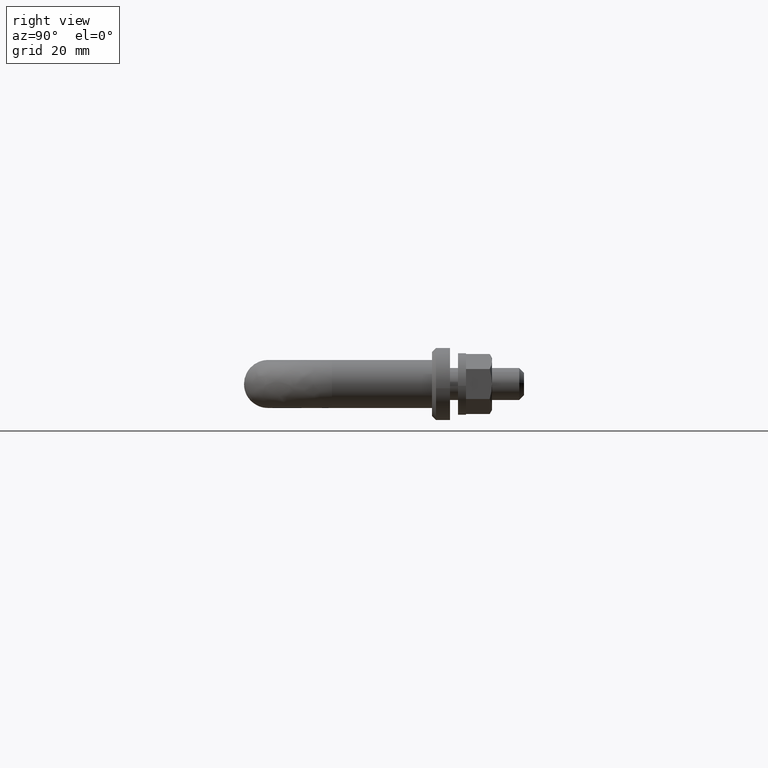
[diagram: clean part render]
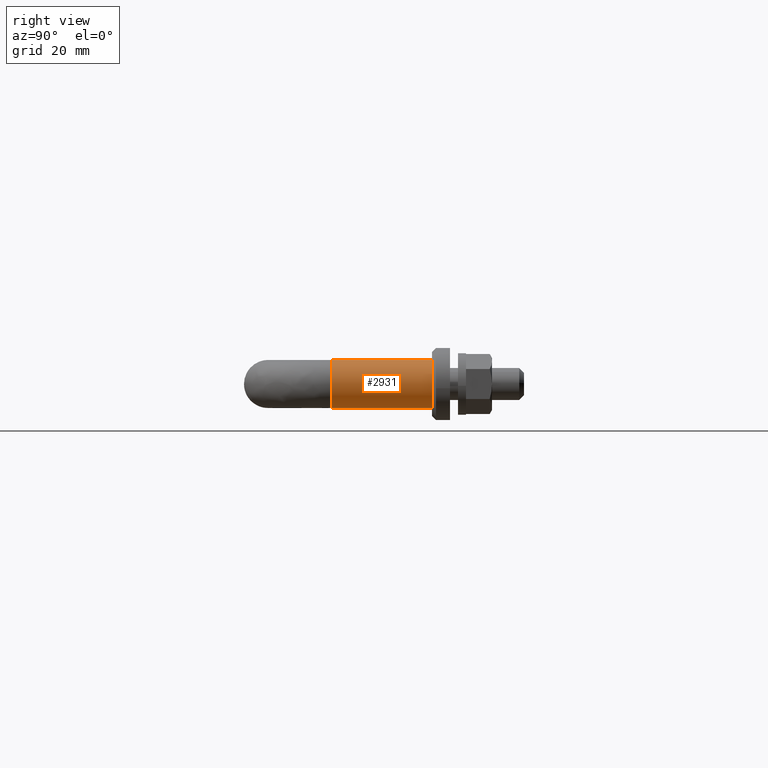
[diagram: same view with one face highlighted and labeled with its STEP entity id]
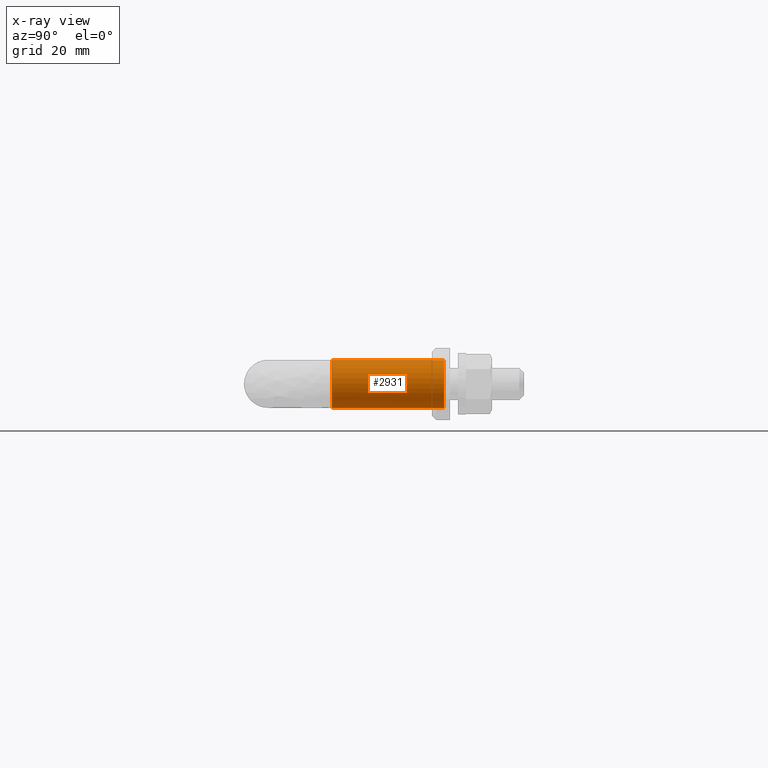
[diagram: x-ray of the same camera — body ghosted, the highlighted face saturated]
A machine part, right view. The second image highlights one B-rep face of the part: STEP entity #2931.
The next image is the same camera in x-ray: the body ghosted, the highlighted face saturated — about 0% of this face is hidden behind the body in this view.
In plain terms, the highlighted face is a freeform B-spline surface patch.
Its self-contained STEP definition (entity closure, byte-faithful):
#2730=CARTESIAN_POINT('',(150.470754574535900,-28.0,5.981504002385480));
#2731=VERTEX_POINT('',#2730);
#2732=CARTESIAN_POINT('',(144.420813481355000,-28.0,2.207414276969677));
#2733=VERTEX_POINT('',#2732);
#2749=CARTESIAN_POINT('',(150.470754574535900,1.705580E-014,5.981504002385480));
#2750=VERTEX_POINT('',#2749);
#2751=CARTESIAN_POINT('',(150.470754574535900,-28.0,5.981504002385480));
#2752=CARTESIAN_POINT('',(150.470754574535900,1.705580E-014,5.981504002385480));
#2753=QUASI_UNIFORM_CURVE('',1,(#2751,#2752),.UNSPECIFIED.,.F.,.U.);
#2754=EDGE_CURVE('',#2731,#2750,#2753,.T.);
#2756=CARTESIAN_POINT('',(144.420813481355000,1.706515E-014,2.207414276969677));
#2757=VERTEX_POINT('',#2756);
#2773=CARTESIAN_POINT('',(144.420813481355000,-28.0,2.207414276969677));
#2774=CARTESIAN_POINT('',(144.420813481355000,1.706515E-014,2.207414276969677));
#2775=QUASI_UNIFORM_CURVE('',1,(#2773,#2774),.UNSPECIFIED.,.F.,.U.);
#2776=EDGE_CURVE('',#2733,#2757,#2775,.T.);
#2781=CARTESIAN_POINT('',(150.470754574367110,-28.700000000797559,5.981504002398766));
#2782=CARTESIAN_POINT('',(156.452258576765810,-28.700000000797555,5.510749428031692));
#2783=CARTESIAN_POINT('',(155.981504002398790,-28.700000000797559,-0.470754574367073));
#2784=CARTESIAN_POINT('',(155.510749428031660,-28.700000000797555,-6.452258576765839));
#2785=CARTESIAN_POINT('',(149.529245425632890,-28.700000000797559,-5.981504002398766));
#2786=CARTESIAN_POINT('',(143.547741423234240,-28.700000000797555,-5.510749428031692));
#2787=CARTESIAN_POINT('',(144.018495997601210,-28.700000000797559,0.470754574367073));
#2788=CARTESIAN_POINT('',(144.089213269862800,-28.700000000797555,1.369302714106634));
#2789=CARTESIAN_POINT('',(144.420813481346610,-28.700000000797552,2.207414276948618));
#2790=CARTESIAN_POINT('',(150.470754574367110,0.717500000019957,5.981504002398766));
#2791=CARTESIAN_POINT('',(156.452258576765810,0.717500000019957,5.510749428031692));
#2792=CARTESIAN_POINT('',(155.981504002398790,0.717500000019957,-0.470754574367073));
#2793=CARTESIAN_POINT('',(155.510749428031660,0.717500000019957,-6.452258576765839));
#2794=CARTESIAN_POINT('',(149.529245425632890,0.717500000019957,-5.981504002398766));
#2795=CARTESIAN_POINT('',(143.547741423234240,0.717500000019957,-5.510749428031692));
#2796=CARTESIAN_POINT('',(144.018495997601210,0.717500000019957,0.470754574367073));
#2797=CARTESIAN_POINT('',(144.089213269862800,0.717500000019957,1.369302714106634));
#2798=CARTESIAN_POINT('',(144.420813481346610,0.717500000019957,2.207414276948618));
#2806=(BOUNDED_SURFACE()B_SPLINE_SURFACE(2,1,((#2781,#2790),(#2782,#2791),(#2783,#2792),(#2784,#2793),(#2785,#2794),(#2786,#2795),(#2787,#2796),(#2788,#2797),(#2789,#2798)),.UNSPECIFIED.,.F.,.F.,.U.)B_SPLINE_SURFACE_WITH_KNOTS((3,2,2,2,3),(2,2),(0.0,9.941125496954307,19.882250993908610,29.823376490862920,31.811601590253780),(0.0,29.417500000817508),.UNSPECIFIED.)GEOMETRIC_REPRESENTATION_ITEM()RATIONAL_B_SPLINE_SURFACE(((1.0,1.0),(0.707106781186548,0.707106781186548),(1.0,1.0),(0.707106781186548,0.707106781186548),(1.0,1.0),(0.707106781186548,0.707106781186548),(1.0,1.0),(0.941421356237310,0.941421356237310),(0.906274169979695,0.906274169979695)))REPRESENTATION_ITEM('')SURFACE());
#2807=CARTESIAN_POINT('',(144.0,-28.0,0.0));
#2808=VERTEX_POINT('',#2807);
#2809=CARTESIAN_POINT('',(144.420813481354970,-28.000000000000004,2.207414276969677));
#2810=CARTESIAN_POINT('',(144.0,-28.000000000000004,1.143818319242670));
#2811=CARTESIAN_POINT('',(144.0,-28.0,0.0));
#2819=(BOUNDED_CURVE()B_SPLINE_CURVE(2,(#2809,#2810,#2811),.UNSPECIFIED.,.F.,.U.)B_SPLINE_CURVE_WITH_KNOTS((3,3),(0.937532549938274,1.0),.UNSPECIFIED.)CURVE()GEOMETRIC_REPRESENTATION_ITEM()RATIONAL_B_SPLINE_CURVE((0.890203187499966,0.926814829921410,1.0))REPRESENTATION_ITEM(''));
#2820=EDGE_CURVE('',#2733,#2808,#2819,.T.);
#2821=ORIENTED_EDGE('',*,*,#2820,.F.);
#2822=ORIENTED_EDGE('',*,*,#2776,.T.);
#2823=CARTESIAN_POINT('',(144.0,1.734723E-014,0.0));
#2824=VERTEX_POINT('',#2823);
#2825=CARTESIAN_POINT('',(144.420813481354970,1.706515E-014,2.207414276969677));
#2826=CARTESIAN_POINT('',(144.0,1.734723E-014,1.143818319242670));
#2827=CARTESIAN_POINT('',(144.0,1.734723E-014,0.0));
#2835=(BOUNDED_CURVE()B_SPLINE_CURVE(2,(#2825,#2826,#2827),.UNSPECIFIED.,.F.,.U.)B_SPLINE_CURVE_WITH_KNOTS((3,3),(0.937532549938274,1.0),.UNSPECIFIED.)CURVE()GEOMETRIC_REPRESENTATION_ITEM()RATIONAL_B_SPLINE_CURVE((0.890203187499966,0.926814829921410,1.0))REPRESENTATION_ITEM(''));
#2836=EDGE_CURVE('',#2757,#2824,#2835,.T.);
#2837=ORIENTED_EDGE('',*,*,#2836,.T.);
#2838=CARTESIAN_POINT('',(156.0,1.734723E-014,0.0));
#2839=VERTEX_POINT('',#2838);
#2840=CARTESIAN_POINT('',(144.0,1.734723E-014,0.0));
#2841=CARTESIAN_POINT('',(144.000000000000060,1.734723E-014,-6.0));
#2842=CARTESIAN_POINT('',(150.0,1.734723E-014,-6.0));
#2843=CARTESIAN_POINT('',(155.999999999999970,1.734723E-014,-6.0));
#2844=CARTESIAN_POINT('',(156.0,1.734723E-014,0.0));
#2852=(BOUNDED_CURVE()B_SPLINE_CURVE(2,(#2840,#2841,#2842,#2843,#2844),.UNSPECIFIED.,.F.,.U.)B_SPLINE_CURVE_WITH_KNOTS((3,2,3),(0.0,0.250000000000000,0.500000000000000),.UNSPECIFIED.)CURVE()GEOMETRIC_REPRESENTATION_ITEM()RATIONAL_B_SPLINE_CURVE((1.0,0.707106781186548,1.0,0.707106781186548,1.0))REPRESENTATION_ITEM(''));
#2853=EDGE_CURVE('',#2824,#2839,#2852,.T.);
#2854=ORIENTED_EDGE('',*,*,#2853,.T.);
#2855=CARTESIAN_POINT('',(156.0,1.734723E-014,0.0));
#2856=CARTESIAN_POINT('',(155.999999999999970,1.734723E-014,5.546342949635164));
#2857=CARTESIAN_POINT('',(150.470754574535960,1.705580E-014,5.981504002385480));
#2865=(BOUNDED_CURVE()B_SPLINE_CURVE(2,(#2855,#2856,#2857),.UNSPECIFIED.,.F.,.U.)B_SPLINE_CURVE_WITH_KNOTS((3,3),(0.500000000000000,0.736331300623089),.UNSPECIFIED.)CURVE()GEOMETRIC_REPRESENTATION_ITEM()RATIONAL_B_SPLINE_CURVE((1.0,0.723120658616535,0.969723356151619))REPRESENTATION_ITEM(''));
#2866=EDGE_CURVE('',#2839,#2750,#2865,.T.);
#2867=ORIENTED_EDGE('',*,*,#2866,.T.);
#2868=ORIENTED_EDGE('',*,*,#2754,.F.);
#2869=CARTESIAN_POINT('',(156.0,-28.0,0.0));
#2870=VERTEX_POINT('',#2869);
#2871=CARTESIAN_POINT('',(156.0,-28.0,0.0));
#2872=CARTESIAN_POINT('',(155.999999999999970,-27.999999999999996,5.546342949635164));
#2873=CARTESIAN_POINT('',(150.470754574535820,-28.000000000000004,5.981504002385480));
#2881=(BOUNDED_CURVE()B_SPLINE_CURVE(2,(#2871,#2872,#2873),.UNSPECIFIED.,.F.,.U.)B_SPLINE_CURVE_WITH_KNOTS((3,3),(0.500000000000000,0.736331300623089),.UNSPECIFIED.)CURVE()GEOMETRIC_REPRESENTATION_ITEM()RATIONAL_B_SPLINE_CURVE((1.0,0.723120658616535,0.969723356151619))REPRESENTATION_ITEM(''));
#2882=EDGE_CURVE('',#2870,#2731,#2881,.T.);
#2883=ORIENTED_EDGE('',*,*,#2882,.F.);
#2884=CARTESIAN_POINT('',(152.417438616497800,-28.000000000778101,-5.491447034750065));
#2885=VERTEX_POINT('',#2884);
#2886=CARTESIAN_POINT('',(152.417438616497690,-28.000000000778101,-5.491447034750065));
#2887=CARTESIAN_POINT('',(156.000000000000030,-28.0,-3.914335903726876));
#2888=CARTESIAN_POINT('',(156.0,-28.0,0.0));
#2896=(BOUNDED_CURVE()B_SPLINE_CURVE(2,(#2886,#2887,#2888),.UNSPECIFIED.,.F.,.U.)B_SPLINE_CURVE_WITH_KNOTS((3,3),(0.318414990264596,0.500000000000000),.UNSPECIFIED.)CURVE()GEOMETRIC_REPRESENTATION_ITEM()RATIONAL_B_SPLINE_CURVE((0.883563120384450,0.787259928041302,1.0))REPRESENTATION_ITEM(''));
#2897=EDGE_CURVE('',#2885,#2870,#2896,.T.);
#2898=ORIENTED_EDGE('',*,*,#2897,.F.);
#2899=CARTESIAN_POINT('',(144.508552964583200,-28.000000000472362,-2.417438614983335));
#2900=VERTEX_POINT('',#2899);
#2901=CARTESIAN_POINT('',(144.508552964583200,-28.000000000472358,-2.417438614983334));
#2902=CARTESIAN_POINT('',(146.085664093914150,-27.999999999999996,-6.0));
#2903=CARTESIAN_POINT('',(150.0,-28.0,-6.0));
#2904=CARTESIAN_POINT('',(151.262211074867390,-28.0,-6.0));
#2905=CARTESIAN_POINT('',(152.417438616497690,-28.000000000778101,-5.491447034750065));
#2913=(BOUNDED_CURVE()B_SPLINE_CURVE(2,(#2901,#2902,#2903,#2904,#2905),.UNSPECIFIED.,.F.,.U.)B_SPLINE_CURVE_WITH_KNOTS((3,2,3),(0.068414990178445,0.250000000000000,0.318414990264596),.UNSPECIFIED.)CURVE()GEOMETRIC_REPRESENTATION_ITEM()RATIONAL_B_SPLINE_CURVE((0.883563120475829,0.787259927940370,1.0,0.919846853145246,0.883563120384450))REPRESENTATION_ITEM(''));
#2914=EDGE_CURVE('',#2900,#2885,#2913,.T.);
#2915=ORIENTED_EDGE('',*,*,#2914,.F.);
#2916=CARTESIAN_POINT('',(144.0,-28.0,0.0));
#2917=CARTESIAN_POINT('',(144.0,-27.999999999999996,-1.262211073139393));
#2918=CARTESIAN_POINT('',(144.508552964583200,-28.000000000472358,-2.417438614983334));
#2926=(BOUNDED_CURVE()B_SPLINE_CURVE(2,(#2916,#2917,#2918),.UNSPECIFIED.,.F.,.U.)B_SPLINE_CURVE_WITH_KNOTS((3,3),(0.0,0.068414990178445),.UNSPECIFIED.)CURVE()GEOMETRIC_REPRESENTATION_ITEM()RATIONAL_B_SPLINE_CURVE((1.0,0.919846853246178,0.883563120475829))REPRESENTATION_ITEM(''));
#2927=EDGE_CURVE('',#2808,#2900,#2926,.T.);
#2928=ORIENTED_EDGE('',*,*,#2927,.F.);
#2929=EDGE_LOOP('',(#2821,#2822,#2837,#2854,#2867,#2868,#2883,#2898,#2915,#2928));
#2930=FACE_OUTER_BOUND('',#2929,.T.);
#2931=ADVANCED_FACE('',(#2930),#2806,.T.);